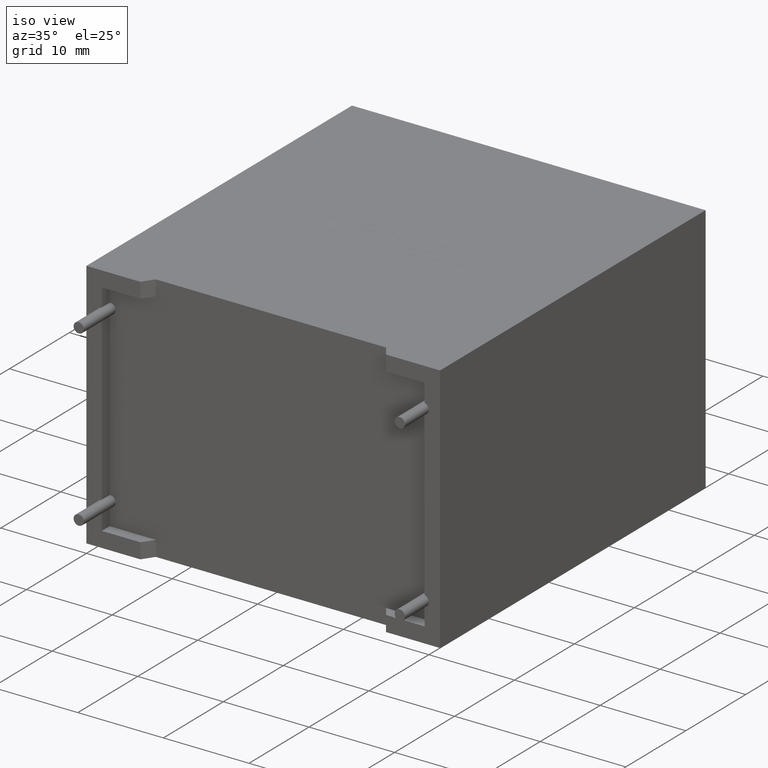
[diagram: clean part render]
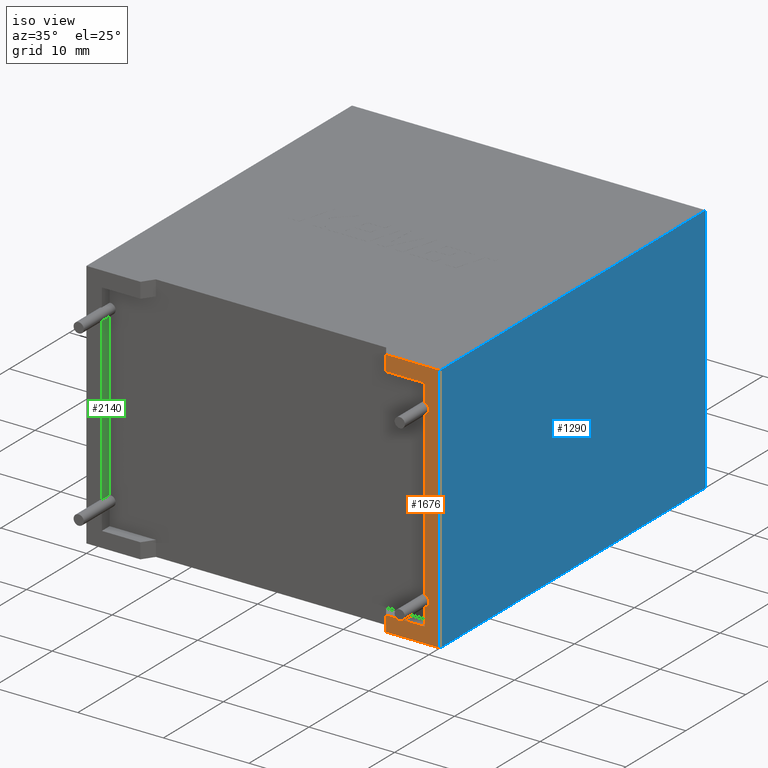
[diagram: same view with three faces highlighted in distinct colors, each labeled with its STEP entity id]
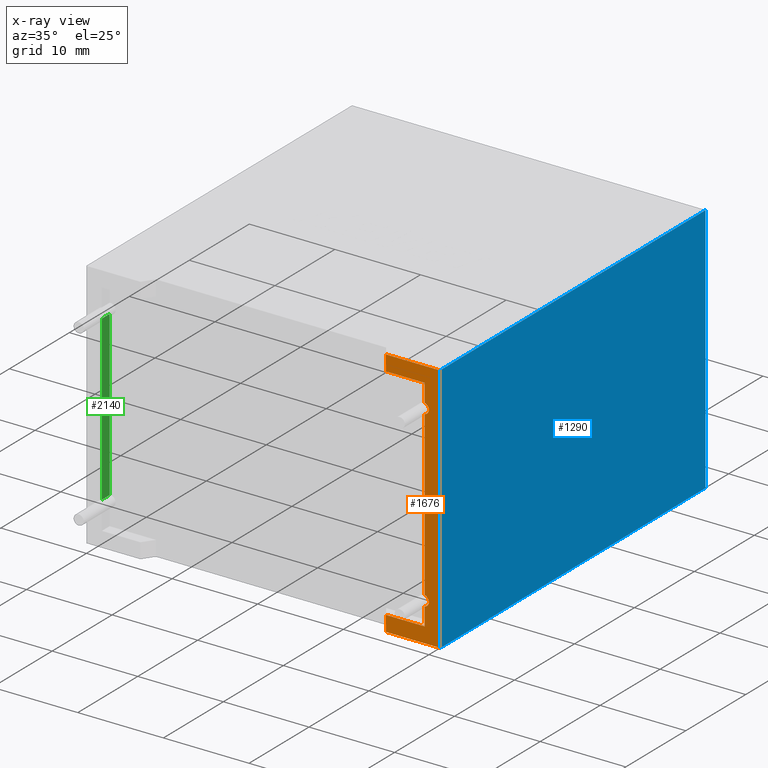
[diagram: x-ray of the same camera — body ghosted, the three highlighted faces saturated]
A machine part, iso view with three faces highlighted in distinct colors.
The next image is the same camera in x-ray (body ghosted, the three faces saturated) — at least one of them is partly hidden behind the body in this view.
Their STEP definitions:

[orange] entity #1676 — the highlighted planar face has unit normal (0, 1, 0).
#110 = DIRECTION ( 'NONE',  ( 0.0000000000000000000, 0.0000000000000000000, 1.000000000000000000 ) ) ;
#149 = LINE ( 'NONE', #592, #3071 ) ;
#179 = LINE ( 'NONE', #993, #2764 ) ;
#185 = DIRECTION ( 'NONE',  ( -0.0000000000000000000, -0.0000000000000000000, 1.000000000000000000 ) ) ;
#192 = VECTOR ( 'NONE', #2216, 1000.000000000000000 ) ;
#207 = CARTESIAN_POINT ( 'NONE',  ( 39.49892899999999700, 0.0000000000000000000, 1.801070999999999900 ) ) ;
#231 = LINE ( 'NONE', #419, #2942 ) ;
#294 = CIRCLE ( 'NONE', #2627, 0.5999999999999998700 ) ;
#305 = VECTOR ( 'NONE', #2636, 1000.000000000000000 ) ;
#306 = CARTESIAN_POINT ( 'NONE',  ( 39.49892899999999700, 0.0000000000000000000, 27.49892899999999700 ) ) ;
#402 = VERTEX_POINT ( 'NONE', #865 ) ;
#419 = CARTESIAN_POINT ( 'NONE',  ( 1.801070999999999900, 0.0000000000000000000, 1.801070999999999900 ) ) ;
#420 = LINE ( 'NONE', #461, #3410 ) ;
#424 = CIRCLE ( 'NONE', #2708, 0.5999999999999998700 ) ;
#461 = CARTESIAN_POINT ( 'NONE',  ( 39.49892899999999700, 0.0000000000000000000, 27.49892899999999700 ) ) ;
#508 = CARTESIAN_POINT ( 'NONE',  ( 39.49892899999999700, 0.0000000000000000000, 24.20821198646897800 ) ) ;
#564 = EDGE_CURVE ( 'NONE', #2837, #791, #231, .T. ) ;
#592 = CARTESIAN_POINT ( 'NONE',  ( 34.99999999999998600, 1.543054966925664900E-015, 0.0000000000000000000 ) ) ;
#646 = AXIS2_PLACEMENT_3D ( 'NONE', #1738, #2256, #1456 ) ;
#674 = ORIENTED_EDGE ( 'NONE', *, *, #2886, .F. ) ;
#791 = VERTEX_POINT ( 'NONE', #207 ) ;
#845 = VERTEX_POINT ( 'NONE', #1029 ) ;
#848 = VERTEX_POINT ( 'NONE', #1851 ) ;
#865 = CARTESIAN_POINT ( 'NONE',  ( 41.29999999999999700, 0.0000000000000000000, 29.30000000000000100 ) ) ;
#904 = VECTOR ( 'NONE', #1221, 1000.000000000000000 ) ;
#959 = DIRECTION ( 'NONE',  ( 0.0000000000000000000, 1.000000000000000000, 0.0000000000000000000 ) ) ;
#971 = CARTESIAN_POINT ( 'NONE',  ( 34.99999999999998600, 1.543054966925664900E-015, 29.30000000000000100 ) ) ;
#993 = CARTESIAN_POINT ( 'NONE',  ( 39.49892899999999700, 0.0000000000000000000, 1.801070999999999900 ) ) ;
#1016 = EDGE_CURVE ( 'NONE', #1178, #402, #1588, .T. ) ;
#1029 = CARTESIAN_POINT ( 'NONE',  ( 41.29999999999999700, 0.0000000000000000000, 0.0000000000000000000 ) ) ;
#1069 = LINE ( 'NONE', #2981, #1645 ) ;
#1178 = VERTEX_POINT ( 'NONE', #971 ) ;
#1187 = CARTESIAN_POINT ( 'NONE',  ( 34.99999999999998600, 1.543054966925664900E-015, 1.801070999999999900 ) ) ;
#1211 = EDGE_CURVE ( 'NONE', #402, #845, #3379, .T. ) ;
#1221 = DIRECTION ( 'NONE',  ( 0.0000000000000000000, 0.0000000000000000000, 1.000000000000000000 ) ) ;
#1344 = ORIENTED_EDGE ( 'NONE', *, *, #2866, .F. ) ;
#1381 = VERTEX_POINT ( 'NONE', #2180 ) ;
#1436 = EDGE_CURVE ( 'NONE', #1381, #2837, #149, .T. ) ;
#1437 = DIRECTION ( 'NONE',  ( 1.000000000000000000, 0.0000000000000000000, 0.0000000000000000000 ) ) ;
#1456 = DIRECTION ( 'NONE',  ( 0.0000000000000000000, -0.0000000000000000000, 1.000000000000000000 ) ) ;
#1588 = LINE ( 'NONE', #1952, #192 ) ;
#1615 = VECTOR ( 'NONE', #185, 1000.000000000000000 ) ;
#1626 = EDGE_CURVE ( 'NONE', #791, #848, #2939, .T. ) ;
#1636 = DIRECTION ( 'NONE',  ( 0.0000000000000000000, 0.0000000000000000000, 1.000000000000000000 ) ) ;
#1645 = VECTOR ( 'NONE', #110, 1000.000000000000000 ) ;
#1653 = DIRECTION ( 'NONE',  ( -0.0000000000000000000, -1.000000000000000000, -0.0000000000000000000 ) ) ;
#1665 = EDGE_CURVE ( 'NONE', #2843, #1178, #2483, .T. ) ;
#1676 = ADVANCED_FACE ( 'NONE', ( #2192 ), #2788, .F. ) ;
#1738 = CARTESIAN_POINT ( 'NONE',  ( 0.0000000000000000000, 0.0000000000000000000, 29.30000000000000100 ) ) ;
#1784 = ORIENTED_EDGE ( 'NONE', *, *, #3170, .F. ) ;
#1787 = ORIENTED_EDGE ( 'NONE', *, *, #1211, .F. ) ;
#1819 = LINE ( 'NONE', #2075, #305 ) ;
#1851 = CARTESIAN_POINT ( 'NONE',  ( 39.49892899999999700, 0.0000000000000000000, 3.908211986468967900 ) ) ;
#1924 = ORIENTED_EDGE ( 'NONE', *, *, #1665, .F. ) ;
#1937 = VERTEX_POINT ( 'NONE', #306 ) ;
#1952 = CARTESIAN_POINT ( 'NONE',  ( 0.0000000000000000000, 0.0000000000000000000, 29.30000000000000100 ) ) ;
#2075 = CARTESIAN_POINT ( 'NONE',  ( 0.0000000000000000000, 0.0000000000000000000, 0.0000000000000000000 ) ) ;
#2128 = VERTEX_POINT ( 'NONE', #3046 ) ;
#2177 = CARTESIAN_POINT ( 'NONE',  ( 39.39999999999998400, 0.0000000000000000000, 4.499999999999993800 ) ) ;
#2180 = CARTESIAN_POINT ( 'NONE',  ( 34.99999999999998600, 1.543054966925664900E-015, 0.0000000000000000000 ) ) ;
#2192 = FACE_OUTER_BOUND ( 'NONE', #2455, .T. ) ;
#2216 = DIRECTION ( 'NONE',  ( 1.000000000000000000, 0.0000000000000000000, 0.0000000000000000000 ) ) ;
#2255 = ORIENTED_EDGE ( 'NONE', *, *, #564, .F. ) ;
#2256 = DIRECTION ( 'NONE',  ( 0.0000000000000000000, 1.000000000000000000, 0.0000000000000000000 ) ) ;
#2286 = EDGE_CURVE ( 'NONE', #2356, #3061, #424, .T. ) ;
#2295 = CARTESIAN_POINT ( 'NONE',  ( 34.99999999999998600, 1.543054966925664900E-015, 0.0000000000000000000 ) ) ;
#2356 = VERTEX_POINT ( 'NONE', #2389 ) ;
#2389 = CARTESIAN_POINT ( 'NONE',  ( 39.49892899999999700, 0.0000000000000000000, 25.39178801353103400 ) ) ;
#2405 = EDGE_CURVE ( 'NONE', #1381, #845, #1819, .T. ) ;
#2455 = EDGE_LOOP ( 'NONE', ( #1784, #2744, #2255, #2666, #2926, #1787, #3080, #1924, #674, #1344, #2570, #2790 ) ) ;
#2483 = LINE ( 'NONE', #2295, #1615 ) ;
#2516 = CARTESIAN_POINT ( 'NONE',  ( 34.99999999999998600, 1.543054966925664900E-015, 27.49892899999999700 ) ) ;
#2525 = CARTESIAN_POINT ( 'NONE',  ( 39.49892899999999700, 0.0000000000000000000, 1.801070999999999900 ) ) ;
#2550 = CARTESIAN_POINT ( 'NONE',  ( 39.39999999999998400, 0.0000000000000000000, 24.80000000000000800 ) ) ;
#2570 = ORIENTED_EDGE ( 'NONE', *, *, #2286, .T. ) ;
#2586 = CARTESIAN_POINT ( 'NONE',  ( 41.29999999999999700, 0.0000000000000000000, 29.30000000000000100 ) ) ;
#2592 = DIRECTION ( 'NONE',  ( 0.0000000000000000000, 0.0000000000000000000, 1.000000000000000000 ) ) ;
#2627 = AXIS2_PLACEMENT_3D ( 'NONE', #2177, #1653, #1636 ) ;
#2636 = DIRECTION ( 'NONE',  ( 1.000000000000000000, 0.0000000000000000000, 0.0000000000000000000 ) ) ;
#2666 = ORIENTED_EDGE ( 'NONE', *, *, #1436, .F. ) ;
#2699 = VECTOR ( 'NONE', #3144, 1000.000000000000000 ) ;
#2707 = EDGE_CURVE ( 'NONE', #2128, #3061, #1069, .T. ) ;
#2708 = AXIS2_PLACEMENT_3D ( 'NONE', #2550, #959, #2815 ) ;
#2744 = ORIENTED_EDGE ( 'NONE', *, *, #1626, .F. ) ;
#2764 = VECTOR ( 'NONE', #2592, 1000.000000000000000 ) ;
#2788 = PLANE ( 'NONE',  #646 ) ;
#2790 = ORIENTED_EDGE ( 'NONE', *, *, #2707, .F. ) ;
#2815 = DIRECTION ( 'NONE',  ( 0.0000000000000000000, 0.0000000000000000000, 1.000000000000000000 ) ) ;
#2837 = VERTEX_POINT ( 'NONE', #1187 ) ;
#2843 = VERTEX_POINT ( 'NONE', #2516 ) ;
#2866 = EDGE_CURVE ( 'NONE', #2356, #1937, #179, .T. ) ;
#2886 = EDGE_CURVE ( 'NONE', #1937, #2843, #420, .T. ) ;
#2926 = ORIENTED_EDGE ( 'NONE', *, *, #2405, .T. ) ;
#2939 = LINE ( 'NONE', #2525, #904 ) ;
#2942 = VECTOR ( 'NONE', #1437, 1000.000000000000000 ) ;
#2981 = CARTESIAN_POINT ( 'NONE',  ( 39.49892899999999700, 0.0000000000000000000, 1.801070999999999900 ) ) ;
#3046 = CARTESIAN_POINT ( 'NONE',  ( 39.49892899999999700, 0.0000000000000000000, 5.091788013531019200 ) ) ;
#3061 = VERTEX_POINT ( 'NONE', #508 ) ;
#3071 = VECTOR ( 'NONE', #3242, 1000.000000000000000 ) ;
#3080 = ORIENTED_EDGE ( 'NONE', *, *, #1016, .F. ) ;
#3130 = DIRECTION ( 'NONE',  ( -1.000000000000000000, 0.0000000000000000000, 0.0000000000000000000 ) ) ;
#3144 = DIRECTION ( 'NONE',  ( -0.0000000000000000000, -0.0000000000000000000, -1.000000000000000000 ) ) ;
#3170 = EDGE_CURVE ( 'NONE', #848, #2128, #294, .T. ) ;
#3242 = DIRECTION ( 'NONE',  ( -0.0000000000000000000, -0.0000000000000000000, 1.000000000000000000 ) ) ;
#3379 = LINE ( 'NONE', #2586, #2699 ) ;
#3410 = VECTOR ( 'NONE', #3130, 1000.000000000000000 ) ;

[blue] entity #1290 — the highlighted planar face has unit normal (-1, 0, 0).
#13 = LINE ( 'NONE', #1870, #2105 ) ;
#241 = EDGE_CURVE ( 'NONE', #402, #879, #2618, .T. ) ;
#279 = EDGE_LOOP ( 'NONE', ( #1355, #2122, #1852, #839 ) ) ;
#315 = DIRECTION ( 'NONE',  ( -0.0000000000000000000, -0.0000000000000000000, -1.000000000000000000 ) ) ;
#343 = VECTOR ( 'NONE', #1917, 1000.000000000000000 ) ;
#371 = AXIS2_PLACEMENT_3D ( 'NONE', #2350, #1324, #758 ) ;
#402 = VERTEX_POINT ( 'NONE', #865 ) ;
#749 = CARTESIAN_POINT ( 'NONE',  ( 41.29999999999999700, 44.29999999999999700, 29.30000000000000100 ) ) ;
#758 = DIRECTION ( 'NONE',  ( 0.0000000000000000000, 0.0000000000000000000, 1.000000000000000000 ) ) ;
#786 = FACE_OUTER_BOUND ( 'NONE', #279, .T. ) ;
#839 = ORIENTED_EDGE ( 'NONE', *, *, #1211, .T. ) ;
#845 = VERTEX_POINT ( 'NONE', #1029 ) ;
#865 = CARTESIAN_POINT ( 'NONE',  ( 41.29999999999999700, 0.0000000000000000000, 29.30000000000000100 ) ) ;
#879 = VERTEX_POINT ( 'NONE', #749 ) ;
#1029 = CARTESIAN_POINT ( 'NONE',  ( 41.29999999999999700, 0.0000000000000000000, 0.0000000000000000000 ) ) ;
#1211 = EDGE_CURVE ( 'NONE', #402, #845, #3379, .T. ) ;
#1290 = ADVANCED_FACE ( 'NONE', ( #786 ), #2375, .F. ) ;
#1324 = DIRECTION ( 'NONE',  ( -1.000000000000000000, 0.0000000000000000000, 0.0000000000000000000 ) ) ;
#1355 = ORIENTED_EDGE ( 'NONE', *, *, #2593, .T. ) ;
#1852 = ORIENTED_EDGE ( 'NONE', *, *, #241, .F. ) ;
#1870 = CARTESIAN_POINT ( 'NONE',  ( 41.29999999999999700, 44.29999999999999700, 29.30000000000000100 ) ) ;
#1917 = DIRECTION ( 'NONE',  ( 0.0000000000000000000, 1.000000000000000000, 0.0000000000000000000 ) ) ;
#2002 = VERTEX_POINT ( 'NONE', #2982 ) ;
#2096 = CARTESIAN_POINT ( 'NONE',  ( 41.29999999999999700, 0.0000000000000000000, 29.30000000000000100 ) ) ;
#2105 = VECTOR ( 'NONE', #315, 1000.000000000000000 ) ;
#2122 = ORIENTED_EDGE ( 'NONE', *, *, #2563, .F. ) ;
#2270 = LINE ( 'NONE', #2703, #343 ) ;
#2350 = CARTESIAN_POINT ( 'NONE',  ( 41.29999999999999700, 0.0000000000000000000, 29.30000000000000100 ) ) ;
#2375 = PLANE ( 'NONE',  #371 ) ;
#2453 = VECTOR ( 'NONE', #3402, 1000.000000000000000 ) ;
#2563 = EDGE_CURVE ( 'NONE', #879, #2002, #13, .T. ) ;
#2586 = CARTESIAN_POINT ( 'NONE',  ( 41.29999999999999700, 0.0000000000000000000, 29.30000000000000100 ) ) ;
#2593 = EDGE_CURVE ( 'NONE', #845, #2002, #2270, .T. ) ;
#2618 = LINE ( 'NONE', #2096, #2453 ) ;
#2699 = VECTOR ( 'NONE', #3144, 1000.000000000000000 ) ;
#2703 = CARTESIAN_POINT ( 'NONE',  ( 41.29999999999999700, 0.0000000000000000000, 0.0000000000000000000 ) ) ;
#2982 = CARTESIAN_POINT ( 'NONE',  ( 41.29999999999999700, 44.29999999999999700, 0.0000000000000000000 ) ) ;
#3144 = DIRECTION ( 'NONE',  ( -0.0000000000000000000, -0.0000000000000000000, -1.000000000000000000 ) ) ;
#3379 = LINE ( 'NONE', #2586, #2699 ) ;
#3402 = DIRECTION ( 'NONE',  ( 0.0000000000000000000, 1.000000000000000000, 0.0000000000000000000 ) ) ;

[green] entity #2140 — the highlighted planar face has unit normal (-1, 0, 0).
#175 = VECTOR ( 'NONE', #2997, 1000.000000000000000 ) ;
#321 = DIRECTION ( 'NONE',  ( 0.0000000000000000000, 0.0000000000000000000, -1.000000000000000000 ) ) ;
#356 = VECTOR ( 'NONE', #2062, 1000.000000000000000 ) ;
#393 = LINE ( 'NONE', #3373, #356 ) ;
#657 = DIRECTION ( 'NONE',  ( -1.000000000000000000, 0.0000000000000000000, 0.0000000000000000000 ) ) ;
#852 = LINE ( 'NONE', #3308, #175 ) ;
#903 = EDGE_CURVE ( 'NONE', #2489, #1168, #1371, .T. ) ;
#926 = CARTESIAN_POINT ( 'NONE',  ( 1.801070999999999900, 1.302419999999999900, 27.49892899999999700 ) ) ;
#1113 = CARTESIAN_POINT ( 'NONE',  ( 1.801070999999999900, 0.0000000000000000000, 27.49892899999999700 ) ) ;
#1134 = ORIENTED_EDGE ( 'NONE', *, *, #3299, .F. ) ;
#1168 = VERTEX_POINT ( 'NONE', #2854 ) ;
#1239 = EDGE_CURVE ( 'NONE', #3230, #1168, #393, .T. ) ;
#1371 = LINE ( 'NONE', #2104, #2163 ) ;
#1383 = CARTESIAN_POINT ( 'NONE',  ( 1.801070999999999900, 0.0000000000000000000, 24.20821198646897800 ) ) ;
#1564 = VECTOR ( 'NONE', #321, 1000.000000000000000 ) ;
#1856 = CARTESIAN_POINT ( 'NONE',  ( 1.801070999999999900, 1.302420000000000400, 24.20821198646897800 ) ) ;
#2062 = DIRECTION ( 'NONE',  ( -0.0000000000000000000, 1.000000000000000000, -0.0000000000000000000 ) ) ;
#2104 = CARTESIAN_POINT ( 'NONE',  ( 1.801070999999999900, 1.302419999999999900, 27.49892899999999700 ) ) ;
#2140 = ADVANCED_FACE ( 'NONE', ( #2940 ), #3304, .F. ) ;
#2163 = VECTOR ( 'NONE', #2873, 1000.000000000000000 ) ;
#2172 = ORIENTED_EDGE ( 'NONE', *, *, #903, .F. ) ;
#2201 = EDGE_LOOP ( 'NONE', ( #2501, #2261, #2172, #1134 ) ) ;
#2252 = DIRECTION ( 'NONE',  ( 0.0000000000000000000, 0.0000000000000000000, 1.000000000000000000 ) ) ;
#2261 = ORIENTED_EDGE ( 'NONE', *, *, #1239, .T. ) ;
#2263 = LINE ( 'NONE', #1113, #1564 ) ;
#2406 = AXIS2_PLACEMENT_3D ( 'NONE', #926, #657, #2252 ) ;
#2489 = VERTEX_POINT ( 'NONE', #1856 ) ;
#2501 = ORIENTED_EDGE ( 'NONE', *, *, #3257, .T. ) ;
#2710 = VERTEX_POINT ( 'NONE', #1383 ) ;
#2854 = CARTESIAN_POINT ( 'NONE',  ( 1.801070999999999900, 1.302419999999999900, 5.091788013531021800 ) ) ;
#2873 = DIRECTION ( 'NONE',  ( 0.0000000000000000000, 0.0000000000000000000, -1.000000000000000000 ) ) ;
#2940 = FACE_OUTER_BOUND ( 'NONE', #2201, .T. ) ;
#2955 = CARTESIAN_POINT ( 'NONE',  ( 1.801070999999999900, 0.0000000000000000000, 5.091788013531023600 ) ) ;
#2997 = DIRECTION ( 'NONE',  ( -0.0000000000000000000, 1.000000000000000000, -0.0000000000000000000 ) ) ;
#3230 = VERTEX_POINT ( 'NONE', #2955 ) ;
#3257 = EDGE_CURVE ( 'NONE', #2710, #3230, #2263, .T. ) ;
#3299 = EDGE_CURVE ( 'NONE', #2710, #2489, #852, .T. ) ;
#3304 = PLANE ( 'NONE',  #2406 ) ;
#3308 = CARTESIAN_POINT ( 'NONE',  ( 1.801070999999999900, -4.000000000000000000, 24.20821198646897800 ) ) ;
#3373 = CARTESIAN_POINT ( 'NONE',  ( 1.801070999999999900, -4.000000000000000000, 5.091788013531021800 ) ) ;